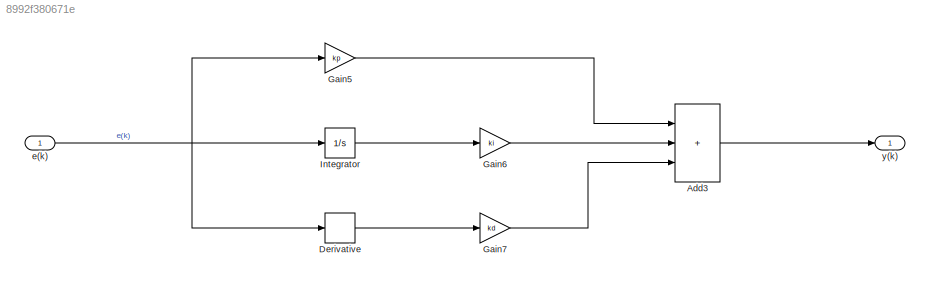
MODEL slx_8992f380671e
KIND model
CONFIG AbsTol = auto
CONFIG EnableMultiTasking = off
CONFIG FixedStep = auto
CONFIG MaxStep = auto
CONFIG MinStep = auto
CONFIG PreLoadFcn = vars
CONFIG RelTol = 1e-3
CONFIG SampleTimeConstraint = Unconstrained
CONFIG SolverName = VariableStepAuto
CONFIG StartTime = 0.0
CONFIG StopTime = 10
WORKSPACE source: mxarray member
WORKSPACE kd = 170.553062
WORKSPACE ki = 289087.103
WORKSPACE kp = 14418.122
BLOCK [Sum] Add3
  IconShape = rectangular
  Inputs = +++
  Ports = [3, 1]
BLOCK [Derivative] Derivative
BLOCK [Gain] Gain5
  Gain = kp
BLOCK [Gain] Gain6
  Gain = ki
BLOCK [Gain] Gain7
  Gain = kd
BLOCK [Integrator] Integrator
  Ports = [1, 1]
BLOCK [Inport] e(k)
  OutDataTypeStr = double
  PortDimensions = 1
  SampleTime = 0
  SamplingMode = Sample based
  SignalType = real
BLOCK [Outport] y(k)
  OutDataTypeStr = double
  PortDimensions = 1
  SampleTime = 0
  SamplingMode = Sample based
  SignalType = real
LINE Add3:1 -> y(k):1
LINE Derivative:1 -> Gain7:1
LINE Gain5:1 -> Add3:1
LINE Gain6:1 -> Add3:2
LINE Gain7:1 -> Add3:3
LINE Integrator:1 -> Gain6:1
NET e(k):1 -> Derivative:1, Gain5:1, Integrator:1
note: NET lines group one-source signal fan-out (src -> all destinations, sorted); 1:1 wires keep LINE
